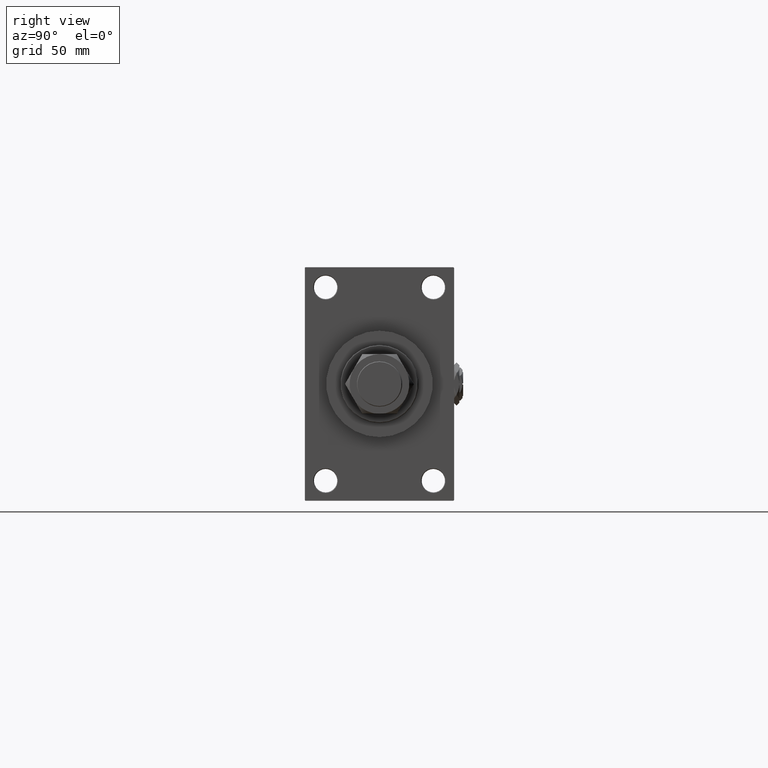
[diagram: clean part render]
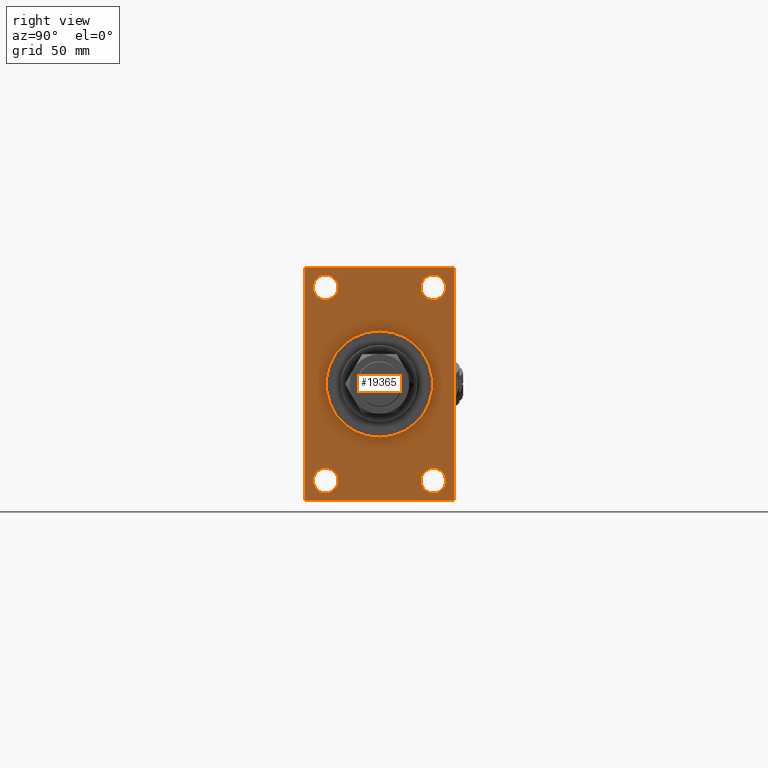
[diagram: same view with one face highlighted and labeled with its STEP entity id]
A machine part, right view. The second image highlights one B-rep face of the part: STEP entity #19365.
In plain terms, the highlighted planar face has unit normal (-1, 0, 0).
Its self-contained STEP definition (entity closure, byte-faithful):
#135 = EDGE_CURVE ( 'NONE', #50257, #12401, #43757, .T. ) ;
#274 = ORIENTED_EDGE ( 'NONE', *, *, #5408, .T. ) ;
#327 = VECTOR ( 'NONE', #50762, 1000.000000000000000 ) ;
#1264 = VECTOR ( 'NONE', #3943, 1000.000000000000000 ) ;
#1693 = CARTESIAN_POINT ( 'NONE',  ( 388.9999999999999432, 56.99999999999997158, 89.99999999999998579 ) ) ;
#2200 = DIRECTION ( 'NONE',  ( -1.000000000000000000, 0.000000000000000000, -0.000000000000000000 ) ) ;
#2220 = LINE ( 'NONE', #32958, #15584 ) ;
#2356 = EDGE_CURVE ( 'NONE', #20203, #38325, #24710, .T. ) ;
#2492 = DIRECTION ( 'NONE',  ( -1.000000000000000000, 0.000000000000000000, -0.000000000000000000 ) ) ;
#2712 = ORIENTED_EDGE ( 'NONE', *, *, #8773, .T. ) ;
#2964 = EDGE_CURVE ( 'NONE', #22407, #15028, #35545, .T. ) ;
#3037 = ORIENTED_EDGE ( 'NONE', *, *, #135, .F. ) ;
#3422 = DIRECTION ( 'NONE',  ( -0.000000000000000000, 0.000000000000000000, 1.000000000000000000 ) ) ;
#3943 = DIRECTION ( 'NONE',  ( -0.000000000000000000, 0.7071067811865573427, 0.7071067811865378028 ) ) ;
#4157 = VERTEX_POINT ( 'NONE', #41263 ) ;
#4263 = LINE ( 'NONE', #37836, #18317 ) ;
#4508 = CARTESIAN_POINT ( 'NONE',  ( 388.9999999999999432, -41.49999999999999289, -64.99999999999997158 ) ) ;
#5055 = VECTOR ( 'NONE', #11592, 1000.000000000000000 ) ;
#5059 = EDGE_CURVE ( 'NONE', #22172, #46288, #33975, .T. ) ;
#5322 = EDGE_CURVE ( 'NONE', #38325, #20203, #32346, .T. ) ;
#5338 = CARTESIAN_POINT ( 'NONE',  ( 388.9999999999999432, 5.021051876504148963E-15, -41.00000000000000000 ) ) ;
#5408 = EDGE_CURVE ( 'NONE', #18822, #4157, #49003, .T. ) ;
#5451 = CARTESIAN_POINT ( 'NONE',  ( 388.9999999999999432, 57.49999999999997868, -89.49999999999995737 ) ) ;
#5798 = DIRECTION ( 'NONE',  ( 0.000000000000000000, -1.000000000000000000, -1.206764157201257291E-16 ) ) ;
#6101 = FACE_BOUND ( 'NONE', #35663, .T. ) ;
#6131 = AXIS2_PLACEMENT_3D ( 'NONE', #42866, #47283, #35549 ) ;
#6626 = VECTOR ( 'NONE', #25849, 1000.000000000000000 ) ;
#6952 = CARTESIAN_POINT ( 'NONE',  ( 388.9999999999999432, 0.000000000000000000, 41.00000000000000000 ) ) ;
#7157 = ORIENTED_EDGE ( 'NONE', *, *, #11893, .T. ) ;
#7172 = ORIENTED_EDGE ( 'NONE', *, *, #45482, .T. ) ;
#7565 = CARTESIAN_POINT ( 'NONE',  ( 388.9999999999999432, 56.99999999999997868, -90.00000000000000000 ) ) ;
#8484 = DIRECTION ( 'NONE',  ( -1.000000000000000000, 0.000000000000000000, -0.000000000000000000 ) ) ;
#8773 = EDGE_CURVE ( 'NONE', #42820, #14672, #31401, .T. ) ;
#9222 = EDGE_CURVE ( 'NONE', #13977, #11072, #48249, .T. ) ;
#9373 = CIRCLE ( 'NONE', #11064, 41.00000000000000000 ) ;
#9497 = CARTESIAN_POINT ( 'NONE',  ( 388.9999999999999432, -41.49999999999999289, 84.00000000000001421 ) ) ;
#9856 = AXIS2_PLACEMENT_3D ( 'NONE', #43907, #19430, #40002 ) ;
#10442 = CARTESIAN_POINT ( 'NONE',  ( 388.9999999999999432, -57.00000000000007105, 89.99999999999997158 ) ) ;
#11064 = AXIS2_PLACEMENT_3D ( 'NONE', #11708, #15365, #39342 ) ;
#11072 = VERTEX_POINT ( 'NONE', #44612 ) ;
#11390 = DIRECTION ( 'NONE',  ( 1.000000000000000000, 0.000000000000000000, 0.000000000000000000 ) ) ;
#11592 = DIRECTION ( 'NONE',  ( 0.000000000000000000, -1.000000000000000000, -1.206764157201257045E-16 ) ) ;
#11649 = CARTESIAN_POINT ( 'NONE',  ( 388.9999999999999432, 0.000000000000000000, 0.000000000000000000 ) ) ;
#11708 = CARTESIAN_POINT ( 'NONE',  ( 388.9999999999999432, 0.000000000000000000, 0.000000000000000000 ) ) ;
#11861 = CARTESIAN_POINT ( 'NONE',  ( 388.9999999999999432, -41.49999999999999289, -74.49999999999998579 ) ) ;
#11893 = EDGE_CURVE ( 'NONE', #14672, #48352, #4263, .T. ) ;
#12206 = ORIENTED_EDGE ( 'NONE', *, *, #18123, .F. ) ;
#12335 = DIRECTION ( 'NONE',  ( 0.000000000000000000, -0.7071067811865474617, 0.7071067811865474617 ) ) ;
#12401 = VERTEX_POINT ( 'NONE', #6952 ) ;
#13120 = CARTESIAN_POINT ( 'NONE',  ( 388.9999999999999432, 41.50000000000000711, -74.50000000000000000 ) ) ;
#13353 = ORIENTED_EDGE ( 'NONE', *, *, #49598, .T. ) ;
#13535 = EDGE_CURVE ( 'NONE', #26377, #11072, #47312, .T. ) ;
#13977 = VERTEX_POINT ( 'NONE', #48972 ) ;
#13999 = VERTEX_POINT ( 'NONE', #5451 ) ;
#14016 = AXIS2_PLACEMENT_3D ( 'NONE', #13120, #28778, #45194 ) ;
#14608 = EDGE_CURVE ( 'NONE', #46288, #22172, #23402, .T. ) ;
#14672 = VERTEX_POINT ( 'NONE', #1693 ) ;
#15028 = VERTEX_POINT ( 'NONE', #18554 ) ;
#15365 = DIRECTION ( 'NONE',  ( 1.000000000000000000, 0.000000000000000000, 0.000000000000000000 ) ) ;
#15525 = EDGE_LOOP ( 'NONE', ( #12206, #3037 ) ) ;
#15584 = VECTOR ( 'NONE', #21467, 1000.000000000000000 ) ;
#16538 = DIRECTION ( 'NONE',  ( 0.000000000000000000, 0.000000000000000000, 1.000000000000000000 ) ) ;
#17023 = CARTESIAN_POINT ( 'NONE',  ( 388.9999999999999432, 41.50000000000000711, 84.00000000000001421 ) ) ;
#17627 = EDGE_LOOP ( 'NONE', ( #7172, #26780 ) ) ;
#18123 = EDGE_CURVE ( 'NONE', #12401, #50257, #9373, .T. ) ;
#18317 = VECTOR ( 'NONE', #5798, 1000.000000000000000 ) ;
#18554 = CARTESIAN_POINT ( 'NONE',  ( 388.9999999999999432, 41.50000000000000711, 65.00000000000000000 ) ) ;
#18706 = CARTESIAN_POINT ( 'NONE',  ( 388.9999999999999432, -57.50000000000002132, 89.99999999999997158 ) ) ;
#18795 = ORIENTED_EDGE ( 'NONE', *, *, #13535, .F. ) ;
#18822 = VERTEX_POINT ( 'NONE', #34872 ) ;
#19041 = AXIS2_PLACEMENT_3D ( 'NONE', #43396, #30934, #46565 ) ;
#19365 = ADVANCED_FACE ( 'NONE', ( #29022, #31555, #6101, #46238, #27131, #23468 ), #49885, .F. ) ;
#19430 = DIRECTION ( 'NONE',  ( -1.000000000000000000, 0.000000000000000000, -0.000000000000000000 ) ) ;
#19829 = AXIS2_PLACEMENT_3D ( 'NONE', #44739, #21531, #29368 ) ;
#20203 = VERTEX_POINT ( 'NONE', #9497 ) ;
#20277 = AXIS2_PLACEMENT_3D ( 'NONE', #35445, #2200, #3422 ) ;
#20793 = EDGE_CURVE ( 'NONE', #26377, #13999, #51362, .T. ) ;
#21215 = ORIENTED_EDGE ( 'NONE', *, *, #20793, .T. ) ;
#21394 = LINE ( 'NONE', #29760, #6626 ) ;
#21467 = DIRECTION ( 'NONE',  ( 0.000000000000000000, 3.854941057726238467E-17, -1.000000000000000000 ) ) ;
#21531 = DIRECTION ( 'NONE',  ( -1.000000000000000000, 0.000000000000000000, -0.000000000000000000 ) ) ;
#21744 = CARTESIAN_POINT ( 'NONE',  ( 388.9999999999999432, -41.49999999999999289, 74.50000000000001421 ) ) ;
#22172 = VERTEX_POINT ( 'NONE', #42371 ) ;
#22401 = CIRCLE ( 'NONE', #19041, 9.500000000000008882 ) ;
#22407 = VERTEX_POINT ( 'NONE', #17023 ) ;
#23342 = ORIENTED_EDGE ( 'NONE', *, *, #2356, .T. ) ;
#23402 = CIRCLE ( 'NONE', #46715, 9.500000000000008882 ) ;
#23468 = FACE_OUTER_BOUND ( 'NONE', #47407, .T. ) ;
#24710 = CIRCLE ( 'NONE', #31394, 9.500000000000008882 ) ;
#24967 = VECTOR ( 'NONE', #12335, 1000.000000000000114 ) ;
#25391 = ORIENTED_EDGE ( 'NONE', *, *, #5059, .T. ) ;
#25684 = EDGE_CURVE ( 'NONE', #4157, #18822, #38567, .T. ) ;
#25849 = DIRECTION ( 'NONE',  ( -0.000000000000000000, -0.7071067811865524577, -0.7071067811865426878 ) ) ;
#26086 = ORIENTED_EDGE ( 'NONE', *, *, #9222, .T. ) ;
#26377 = VERTEX_POINT ( 'NONE', #7565 ) ;
#26738 = EDGE_CURVE ( 'NONE', #48544, #13977, #38513, .T. ) ;
#26780 = ORIENTED_EDGE ( 'NONE', *, *, #2964, .T. ) ;
#27131 = FACE_BOUND ( 'NONE', #15525, .T. ) ;
#27304 = DIRECTION ( 'NONE',  ( 0.000000000000000000, 0.000000000000000000, -1.000000000000000000 ) ) ;
#28778 = DIRECTION ( 'NONE',  ( -1.000000000000000000, 0.000000000000000000, -0.000000000000000000 ) ) ;
#29022 = FACE_BOUND ( 'NONE', #33402, .T. ) ;
#29368 = DIRECTION ( 'NONE',  ( 0.000000000000000000, 0.000000000000000000, 1.000000000000000000 ) ) ;
#29574 = CARTESIAN_POINT ( 'NONE',  ( 388.9999999999999432, -41.49999999999999289, 65.00000000000000000 ) ) ;
#29578 = DIRECTION ( 'NONE',  ( 0.000000000000000000, 0.000000000000000000, 1.000000000000000000 ) ) ;
#29714 = DIRECTION ( 'NONE',  ( 0.000000000000000000, 0.000000000000000000, 1.000000000000000000 ) ) ;
#29760 = CARTESIAN_POINT ( 'NONE',  ( 388.9999999999999432, -57.50000000000002132, 89.50000000000002842 ) ) ;
#30934 = DIRECTION ( 'NONE',  ( -1.000000000000000000, 0.000000000000000000, -0.000000000000000000 ) ) ;
#31394 = AXIS2_PLACEMENT_3D ( 'NONE', #21744, #2492, #29578 ) ;
#31401 = LINE ( 'NONE', #48310, #24967 ) ;
#31555 = FACE_BOUND ( 'NONE', #35782, .T. ) ;
#32346 = CIRCLE ( 'NONE', #9856, 9.500000000000008882 ) ;
#32611 = CARTESIAN_POINT ( 'NONE',  ( 388.9999999999999432, -57.00000000000002132, -90.00000000000001421 ) ) ;
#32958 = CARTESIAN_POINT ( 'NONE',  ( 388.9999999999999432, 57.49999999999997158, 89.99999999999998579 ) ) ;
#33363 = DIRECTION ( 'NONE',  ( -1.000000000000000000, 0.000000000000000000, -0.000000000000000000 ) ) ;
#33402 = EDGE_LOOP ( 'NONE', ( #46156, #23342 ) ) ;
#33975 = CIRCLE ( 'NONE', #19829, 9.500000000000008882 ) ;
#34872 = CARTESIAN_POINT ( 'NONE',  ( 388.9999999999999432, 41.50000000000000711, -84.00000000000000000 ) ) ;
#35445 = CARTESIAN_POINT ( 'NONE',  ( 388.9999999999999432, 0.000000000000000000, 0.000000000000000000 ) ) ;
#35545 = CIRCLE ( 'NONE', #46393, 9.500000000000008882 ) ;
#35549 = DIRECTION ( 'NONE',  ( 0.000000000000000000, 0.000000000000000000, 1.000000000000000000 ) ) ;
#35663 = EDGE_LOOP ( 'NONE', ( #274, #37837 ) ) ;
#35782 = EDGE_LOOP ( 'NONE', ( #25391, #39685 ) ) ;
#37836 = CARTESIAN_POINT ( 'NONE',  ( 388.9999999999999432, 57.49999999999997158, 89.99999999999998579 ) ) ;
#37837 = ORIENTED_EDGE ( 'NONE', *, *, #25684, .T. ) ;
#38324 = EDGE_CURVE ( 'NONE', #42820, #13999, #2220, .T. ) ;
#38325 = VERTEX_POINT ( 'NONE', #29574 ) ;
#38513 = LINE ( 'NONE', #18706, #327 ) ;
#38567 = CIRCLE ( 'NONE', #6131, 9.500000000000008882 ) ;
#39342 = DIRECTION ( 'NONE',  ( 0.000000000000000000, 0.000000000000000000, -1.000000000000000000 ) ) ;
#39580 = CARTESIAN_POINT ( 'NONE',  ( 388.9999999999999432, -57.50000000000002132, 89.50000000000002842 ) ) ;
#39625 = CARTESIAN_POINT ( 'NONE',  ( 388.9999999999999432, 57.49999999999997868, -89.50000000000001421 ) ) ;
#39685 = ORIENTED_EDGE ( 'NONE', *, *, #14608, .T. ) ;
#39997 = CARTESIAN_POINT ( 'NONE',  ( 388.9999999999999432, 57.49999999999997868, -90.00000000000000000 ) ) ;
#40002 = DIRECTION ( 'NONE',  ( 0.000000000000000000, 0.000000000000000000, 1.000000000000000000 ) ) ;
#41169 = ORIENTED_EDGE ( 'NONE', *, *, #26738, .T. ) ;
#41263 = CARTESIAN_POINT ( 'NONE',  ( 388.9999999999999432, 41.50000000000000711, -64.99999999999998579 ) ) ;
#42100 = AXIS2_PLACEMENT_3D ( 'NONE', #11649, #11390, #27304 ) ;
#42129 = CARTESIAN_POINT ( 'NONE',  ( 388.9999999999999432, 57.49999999999997158, 89.49999999999998579 ) ) ;
#42357 = VECTOR ( 'NONE', #44845, 1000.000000000000114 ) ;
#42371 = CARTESIAN_POINT ( 'NONE',  ( 388.9999999999999432, -41.49999999999999289, -83.99999999999998579 ) ) ;
#42820 = VERTEX_POINT ( 'NONE', #42129 ) ;
#42866 = CARTESIAN_POINT ( 'NONE',  ( 388.9999999999999432, 41.50000000000000711, -74.50000000000000000 ) ) ;
#43396 = CARTESIAN_POINT ( 'NONE',  ( 388.9999999999999432, 41.50000000000000711, 74.50000000000001421 ) ) ;
#43757 = CIRCLE ( 'NONE', #42100, 41.00000000000000000 ) ;
#43907 = CARTESIAN_POINT ( 'NONE',  ( 388.9999999999999432, -41.49999999999999289, 74.50000000000001421 ) ) ;
#44612 = CARTESIAN_POINT ( 'NONE',  ( 388.9999999999999432, -57.00000000000002132, -90.00000000000001421 ) ) ;
#44739 = CARTESIAN_POINT ( 'NONE',  ( 388.9999999999999432, -41.49999999999999289, -74.49999999999998579 ) ) ;
#44845 = DIRECTION ( 'NONE',  ( 0.000000000000000000, 0.7071067811865965336, -0.7071067811864985009 ) ) ;
#45194 = DIRECTION ( 'NONE',  ( 0.000000000000000000, 0.000000000000000000, 1.000000000000000000 ) ) ;
#45482 = EDGE_CURVE ( 'NONE', #15028, #22407, #22401, .T. ) ;
#45765 = ORIENTED_EDGE ( 'NONE', *, *, #38324, .F. ) ;
#46156 = ORIENTED_EDGE ( 'NONE', *, *, #5322, .T. ) ;
#46238 = FACE_BOUND ( 'NONE', #17627, .T. ) ;
#46288 = VERTEX_POINT ( 'NONE', #4508 ) ;
#46393 = AXIS2_PLACEMENT_3D ( 'NONE', #48738, #33363, #29714 ) ;
#46565 = DIRECTION ( 'NONE',  ( 0.000000000000000000, 0.000000000000000000, 1.000000000000000000 ) ) ;
#46715 = AXIS2_PLACEMENT_3D ( 'NONE', #11861, #8484, #16538 ) ;
#47283 = DIRECTION ( 'NONE',  ( -1.000000000000000000, 0.000000000000000000, -0.000000000000000000 ) ) ;
#47312 = LINE ( 'NONE', #39997, #5055 ) ;
#47407 = EDGE_LOOP ( 'NONE', ( #41169, #26086, #18795, #21215, #45765, #2712, #7157, #13353 ) ) ;
#48249 = LINE ( 'NONE', #32611, #42357 ) ;
#48310 = CARTESIAN_POINT ( 'NONE',  ( 388.9999999999999432, 56.99999999999997158, 89.99999999999998579 ) ) ;
#48352 = VERTEX_POINT ( 'NONE', #10442 ) ;
#48544 = VERTEX_POINT ( 'NONE', #39580 ) ;
#48738 = CARTESIAN_POINT ( 'NONE',  ( 388.9999999999999432, 41.50000000000000711, 74.50000000000001421 ) ) ;
#48972 = CARTESIAN_POINT ( 'NONE',  ( 388.9999999999999432, -57.50000000000002132, -89.50000000000002842 ) ) ;
#49003 = CIRCLE ( 'NONE', #14016, 9.500000000000008882 ) ;
#49598 = EDGE_CURVE ( 'NONE', #48352, #48544, #21394, .T. ) ;
#49885 = PLANE ( 'NONE',  #20277 ) ;
#50257 = VERTEX_POINT ( 'NONE', #5338 ) ;
#50762 = DIRECTION ( 'NONE',  ( 0.000000000000000000, 0.000000000000000000, -1.000000000000000000 ) ) ;
#51362 = LINE ( 'NONE', #39625, #1264 ) ;